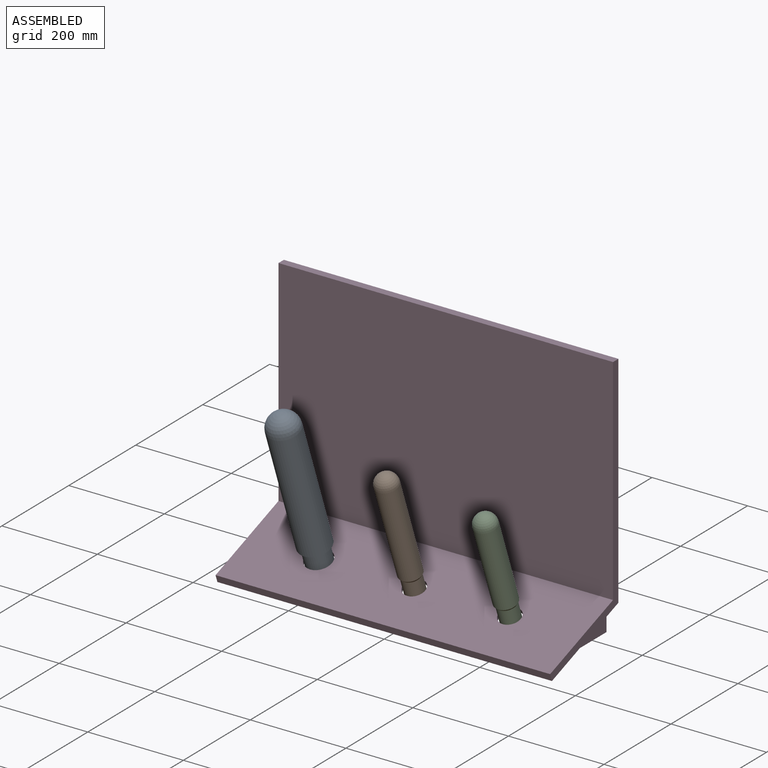
[diagram: assembled view]
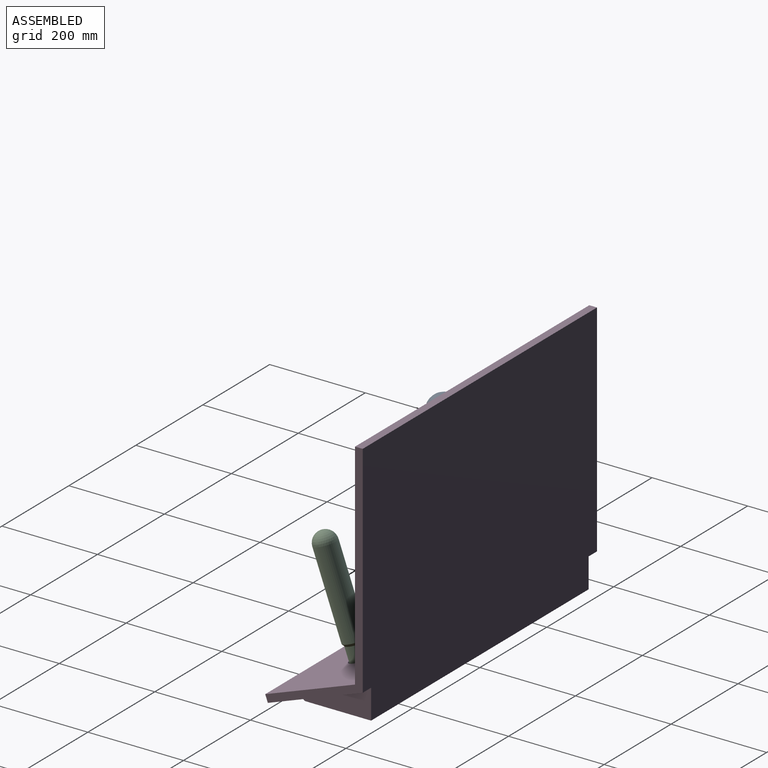
[diagram: assembled view, second angle]
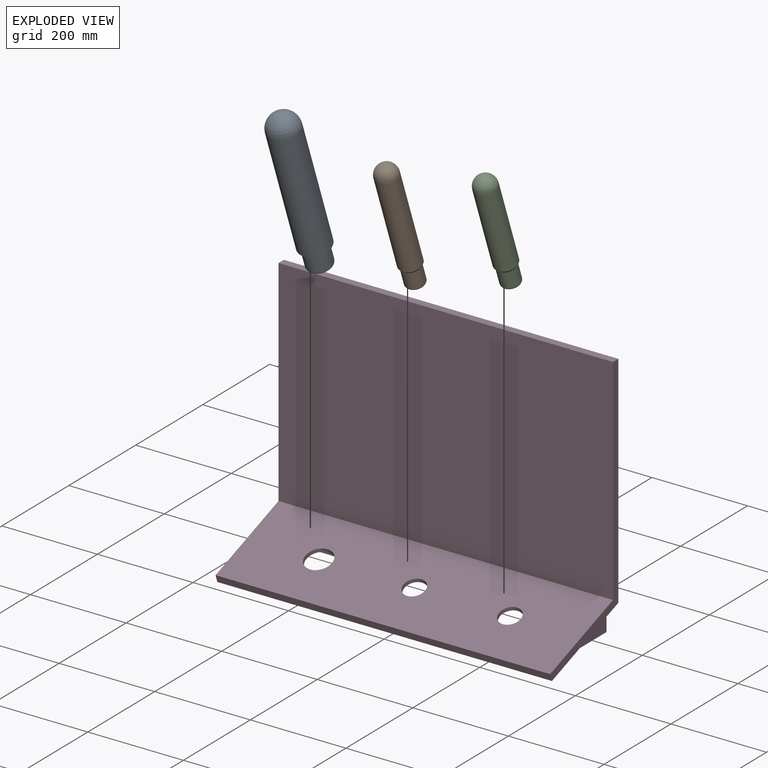
[diagram: exploded view]
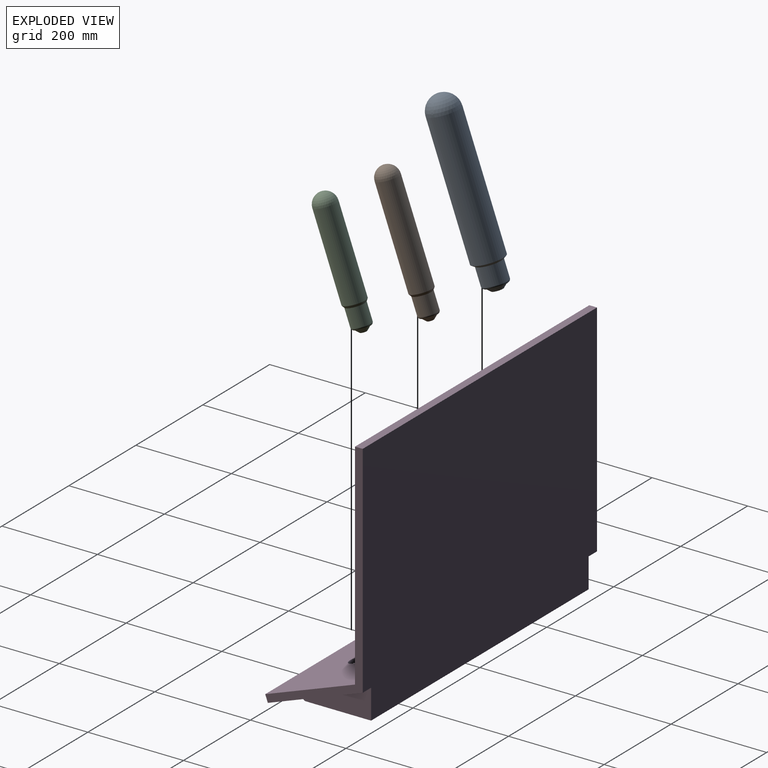
[diagram: exploded view, second angle]
ASSEMBLY  parts=4 mates=3
PART A: 8 faces, bbox 66x66x360 mm
  f0: cylinder r=33mm len=272mm, axis (0,0,1), area 56397.9mm2, adj f1,f6
  f1: cone r=33mm half-angle=54.5deg, axis (0,0,1), area 1594.5mm2, adj f0,f2
  f2: cylinder r=26mm len=52mm, axis (0,0,1), area 6044.4mm2, adj f1,f7
  f3: plane 42x42mm, normal (0,0,-1), area 128.8mm2, adj f4,f7
  f4: cone r=12mm half-angle=45deg, axis (0,0,1), area 1137.4mm2, adj f3,f5
  f5: plane 24x24mm, normal (0,0,-1), area 452.4mm2, adj f4
  f6: sphere r=33mm, area 6842.4mm2, adj f0
  f7: torus R=21mm, axis (0,0,-1), area 1193.4mm2, adj f2,f3
PART B: 7 faces, bbox 47x47x285 mm
  f0: cylinder r=23.5mm len=206.5mm, axis (0,0,1), area 30490.7mm2, adj f1,f5
  f1: cone r=23.5mm half-angle=35deg, axis (0,0,1), area 834.1mm2, adj f0,f2
  f2: cylinder r=20mm len=40mm, axis (0,0,1), area 4649.6mm2, adj f1,f6
  f3: cone r=7mm half-angle=45deg, axis (0,0,1), area 781.9mm2, adj f4,f6
  f4: plane 14x14mm, normal (0,0,-1), area 153.9mm2, adj f3
  f5: sphere r=23.5mm, area 3469.9mm2, adj f0
  f6: torus R=15mm, axis (0,0,-1), area 897.3mm2, adj f2,f3
PART C: 7 faces, bbox 47x47x257 mm
  f0: cylinder r=23.5mm len=178.5mm, axis (0,0,1), area 26356.4mm2, adj f1,f5
  f1: cone r=23.5mm half-angle=35deg, axis (0,0,1), area 834.1mm2, adj f0,f2
  f2: cylinder r=20mm len=40mm, axis (0,0,1), area 4649.6mm2, adj f1,f6
  f3: cone r=7mm half-angle=45deg, axis (0,0,1), area 781.9mm2, adj f4,f6
  f4: plane 14x14mm, normal (0,0,-1), area 153.9mm2, adj f3
  f5: sphere r=23.5mm, area 3469.9mm2, adj f0
  f6: torus R=15mm, axis (0,0,-1), area 897.3mm2, adj f2,f3
PART D: 27 faces, bbox 700x203.9x533.4 mm
  f0: plane 700x198.47mm, normal (0,0.34,-0.94), area 98446.8mm2, adj f4,f5,f9,f10,f11,f12,f14,f15
  f1: cylinder r=22.5mm len=45.02mm, axis (0,-0.34,0.94), area 1131mm2, adj f8,f24
  f2: cylinder r=22.5mm len=45.02mm, axis (0,-0.34,0.94), area 1131mm2, adj f8,f22
  f3: cylinder r=27.5mm len=55mm, axis (0,-0.34,0.94), area 1382.3mm2, adj f8,f20
  f4: plane 618x56.41mm, normal (0,-1,0), area 34862.8mm2, adj f0,f13,f16,f18
  f5: plane 700x523.44mm, normal (0,1,0), area 363295.6mm2, adj f0,f6,f10,f11,f12,f13,f14
  f6: plane 700x16mm, normal (0,0,1), area 11200mm2, adj f5,f7,f10,f11
  f7: plane 700x450mm, normal (0,-1,0), area 315000mm2, adj f6,f8,f10,f11
  f8: plane 700x187.94mm, normal (0,-0.34,0.94), area 134443.3mm2, adj f1,f2,f3,f7,f9,f10,f11
  f9: plane 700x15.04mm, normal (0,-0.94,-0.34), area 11200mm2, adj f0,f8,f10,f11
  f10: plane 533.44x203.94mm, normal (1,0,0), area 10579.3mm2, adj f0,f5,f6,f7,f8,f9
  f11: plane 533.44x203.94mm, normal (-1,0,0), area 10579.3mm2, adj f0,f5,f6,f7,f8,f9
  f12: plane 145.17x62.24mm, normal (1,0,0), area 5177.8mm2, adj f0,f5,f13,f15,f26
  f13: plane 650x136.15mm, normal (0,0,-1), area 14244.9mm2, adj f4,f5,f12,f14,f16,f18,f25,f26
  f14: plane 145.17x62.24mm, normal (-1,0,0), area 5177.8mm2, adj f0,f5,f13,f17,f25
  f15: plane 16x4.13mm, normal (0,-0.94,-0.34), area 70.4mm2, adj f0,f12,f16,f26
  f16: plane 129.17x56.41mm, normal (-1,0,0), area 4228.6mm2, adj f0,f4,f13,f15,f26
  f17: plane 16x4.13mm, normal (0,-0.94,-0.34), area 70.4mm2, adj f0,f14,f18,f25
  f18: plane 129.17x56.41mm, normal (1,0,0), area 4228.6mm2, adj f0,f4,f13,f17,f25
  f19: cylinder r=60mm len=120mm, axis (0,0.34,-0.94), area 3015.9mm2, adj f0,f20
  f20: plane 120x112.76mm, normal (0,0.34,-0.94), area 8933.9mm2, adj f3,f19
  f21: cylinder r=60mm len=120mm, axis (0,0.34,-0.94), area 3015.9mm2, adj f0,f22
  f22: plane 120x112.76mm, normal (0,0.34,-0.94), area 9719.3mm2, adj f2,f21
  f23: cylinder r=60mm len=120mm, axis (0,0.34,-0.94), area 3015.9mm2, adj f0,f24
  f24: plane 120x112.76mm, normal (0,0.34,-0.94), area 9719.3mm2, adj f1,f23
  f25: cylinder r=8mm len=16mm, axis (-1,0,0), area 156.4mm2, adj f13,f14,f17,f18
  f26: cylinder r=8mm len=16mm, axis (-1,0,0), area 156.4mm2, adj f12,f13,f15,f16
PLACE A rot(axis=(1,0,0),20deg) t=(-200,-103.13,20.44)mm
PLACE B rot(axis=(0.17,-0.17,0.97),91.7deg) t=(0,84.81,88.85)mm
PLACE C rot(axis=(1,0,0),20deg) t=(600,-103.13,20.44)mm
PLACE D t=(0,1000,62.24)mm
MATE fastened D.f19 <-> A.f0  axis (0,-0.34,0.94) through (-200,-109.97,39.24)mm
MATE fastened B.f0 <-> D.f21  axis (0,0.34,-0.94) through (0,-103.13,20.44)mm
MATE fastened C.f0 <-> D.f23  axis (0,0.34,-0.94) through (200,-103.13,20.44)mm
